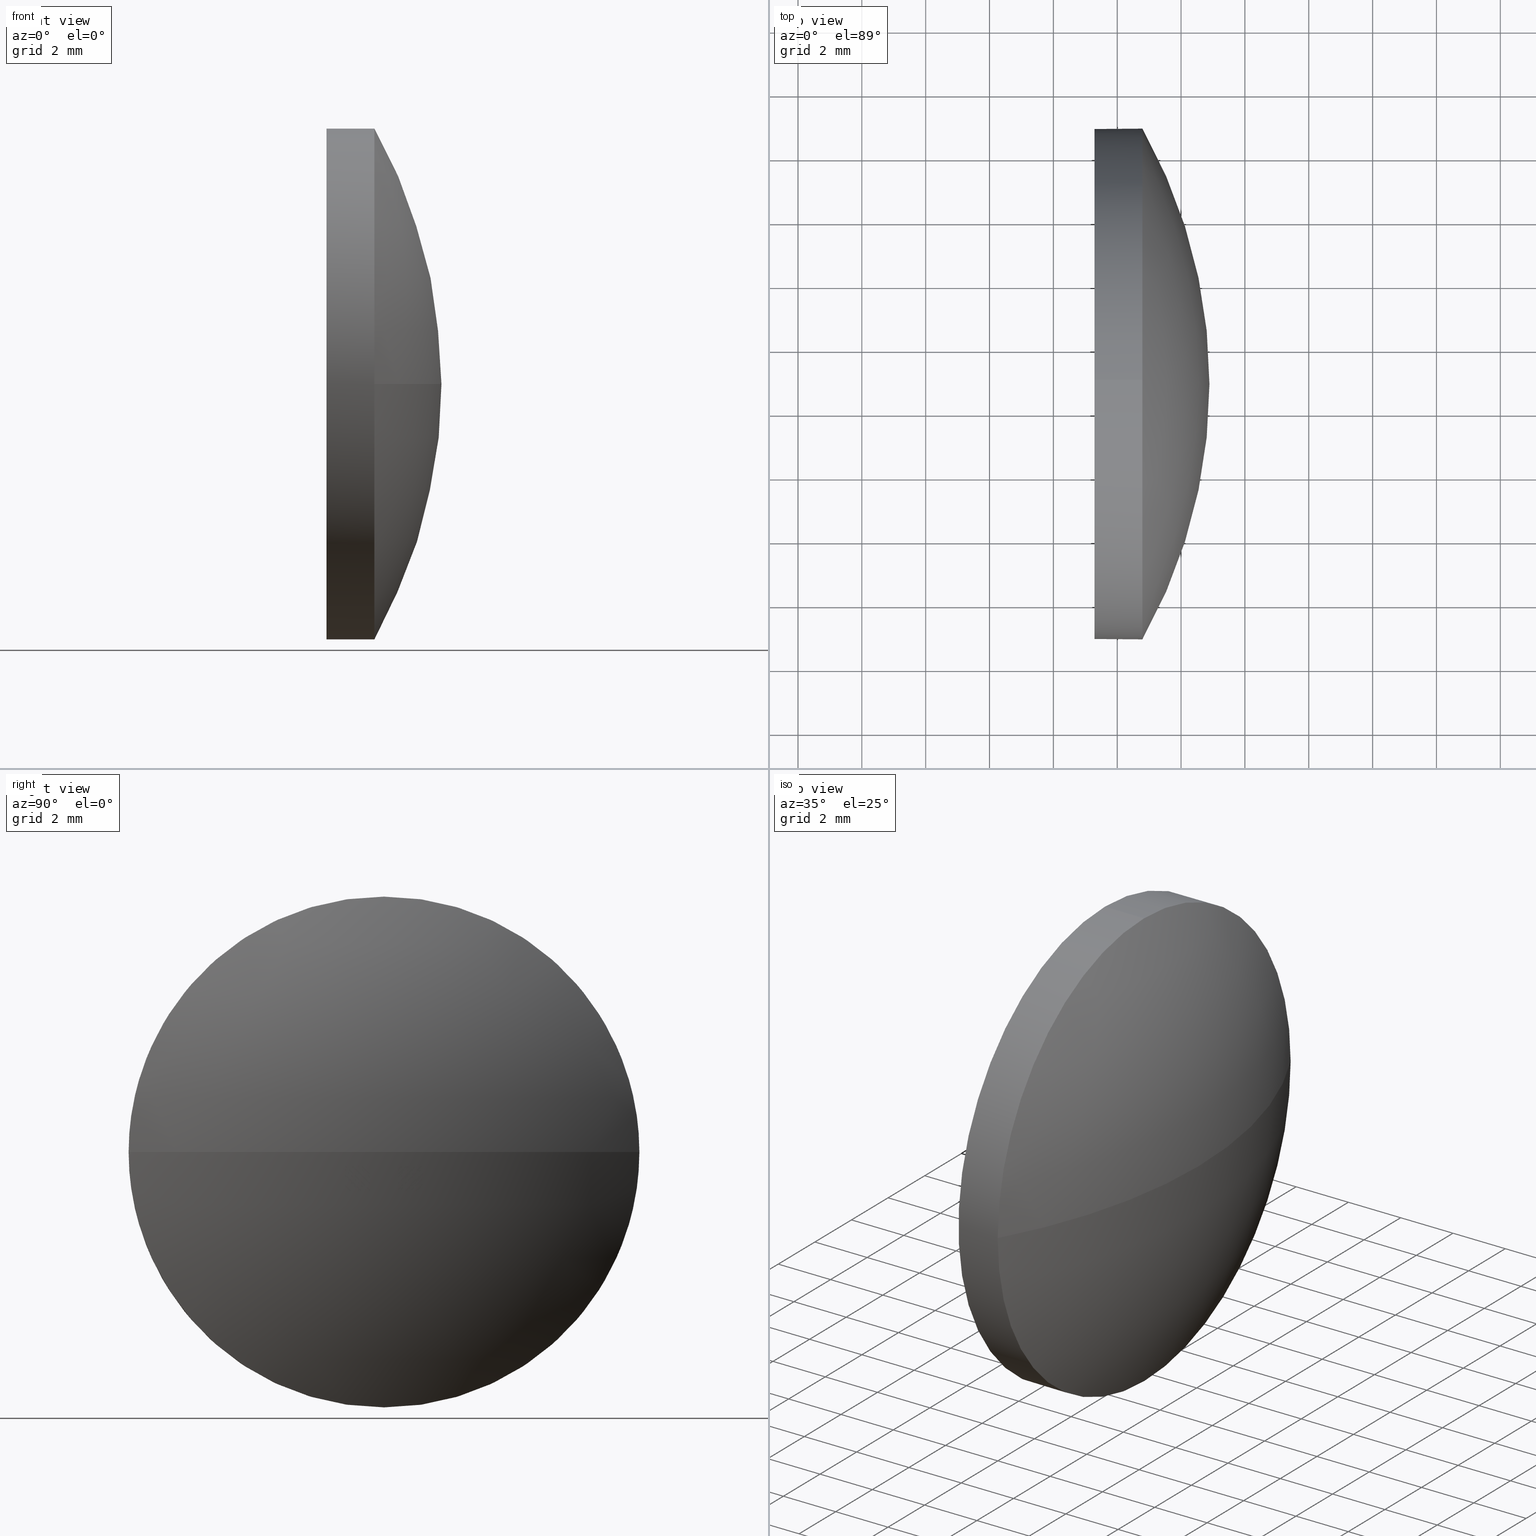
[diagram: canonical four-view strip — front | top / right | iso, engineering-drawing reading convention]
A machine part, canonical four-view strip (front | top / right | iso — engineering-drawing reading convention). The complete STEP part file that produces these views, byte-faithful:
ISO-10303-21;
HEADER;
FILE_DESCRIPTION (( 'STEP AP214' ),
    '1' );
FILE_NAME ('100113.STEP',
    '2019-05-14T02:07:18',
    ( '' ),
    ( '' ),
    'SwSTEP 2.0',
    'SolidWorks 2016',
    '' );
FILE_SCHEMA (( 'AUTOMOTIVE_DESIGN' ));
ENDSEC;

DATA;
#1 = DIRECTION ( 'NONE',  ( 0.0000000000000000000, 0.0000000000000000000, -1.000000000000000000 ) ) ;
#2 = AXIS2_PLACEMENT_3D ( 'NONE', #87, #1, #45 ) ;
#3 = ORIENTED_EDGE ( 'NONE', *, *, #157, .T. ) ;
#4 = SHAPE_DEFINITION_REPRESENTATION ( #36, #78 ) ;
#5 = VERTEX_POINT ( 'NONE', #9 ) ;
#6 = CARTESIAN_POINT ( 'NONE',  ( 0.0000000000000000000, 0.0000000000000000000, 0.0000000000000000000 ) ) ;
#7 = COLOUR_RGB ( '',1.000000000000000000, 1.000000000000000000, 1.000000000000000000 ) ;
#8 = CARTESIAN_POINT ( 'NONE',  ( 396.8896529179952500, 34.86392856957573400, 0.0000000000000000000 ) ) ;
#9 = CARTESIAN_POINT ( 'NONE',  ( 394.7896529179952800, 42.86392856957571200, 9.797174393178796100E-016 ) ) ;
#10 =( GEOMETRIC_REPRESENTATION_CONTEXT ( 3 ) GLOBAL_UNCERTAINTY_ASSIGNED_CONTEXT ( ( #184 ) ) GLOBAL_UNIT_ASSIGNED_CONTEXT ( ( #101, #126, #29 ) ) REPRESENTATION_CONTEXT ( 'NONE', 'WORKASPACE' ) );
#11 = EDGE_LOOP ( 'NONE', ( #25, #138 ) ) ;
#12 = CARTESIAN_POINT ( 'NONE',  ( 393.2896529179952800, 34.86392856957570500, 8.000000000000000000 ) ) ;
#13 = CIRCLE ( 'NONE', #155, 8.000000000000000000 ) ;
#14 = CARTESIAN_POINT ( 'NONE',  ( 391.3668362131495500, 34.86392856957570500, -8.000000000000000000 ) ) ;
#15 = CARTESIAN_POINT ( 'NONE',  ( 393.2896529179952800, 34.86392856957570500, 0.0000000000000000000 ) ) ;
#16 = PRESENTATION_LAYER_ASSIGNMENT (  '', '', ( #108 ) ) ;
#17 = EDGE_LOOP ( 'NONE', ( #104, #47, #32, #83 ) ) ;
#18 = FACE_OUTER_BOUND ( 'NONE', #114, .T. ) ;
#19 = ORIENTED_EDGE ( 'NONE', *, *, #157, .F. ) ;
#20 = EDGE_CURVE ( 'NONE', #61, #46, #21, .T. ) ;
#21 = CIRCLE ( 'NONE', #123, 8.000000000000000000 ) ;
#22 = CYLINDRICAL_SURFACE ( 'NONE', #176, 8.000000000000000000 ) ;
#23 = PLANE ( 'NONE',  #89 ) ;
#24 = MECHANICAL_DESIGN_GEOMETRIC_PRESENTATION_REPRESENTATION (  '', ( #108 ), #38 ) ;
#25 = ORIENTED_EDGE ( 'NONE', *, *, #20, .T. ) ;
#26 = SURFACE_STYLE_USAGE ( .BOTH. , #183 ) ;
#27 = CARTESIAN_POINT ( 'NONE',  ( 391.3668362131495500, 34.86392856957570500, 0.0000000000000000000 ) ) ;
#28 = FACE_OUTER_BOUND ( 'NONE', #53, .T. ) ;
#29 =( NAMED_UNIT ( * ) SI_UNIT ( $, .STERADIAN. ) SOLID_ANGLE_UNIT ( ) );
#30 = CARTESIAN_POINT ( 'NONE',  ( 394.7896529179952800, 34.86392856957570500, 0.0000000000000000000 ) ) ;
#31 = DIRECTION ( 'NONE',  ( 0.0000000000000000000, 0.0000000000000000000, 1.000000000000000000 ) ) ;
#32 = ORIENTED_EDGE ( 'NONE', *, *, #115, .F. ) ;
#33 = CARTESIAN_POINT ( 'NONE',  ( 391.3668362131495500, 34.86392856957570500, 0.0000000000000000000 ) ) ;
#34 = AXIS2_PLACEMENT_3D ( 'NONE', #71, #131, #154 ) ;
#35 = FACE_OUTER_BOUND ( 'NONE', #17, .T. ) ;
#36 = PRODUCT_DEFINITION_SHAPE ( 'NONE', 'NONE',  #120 ) ;
#37 = UNCERTAINTY_MEASURE_WITH_UNIT (LENGTH_MEASURE( 1.000000000000000100E-005 ), #48, 'distance_accuracy_value', 'NONE');
#38 =( GEOMETRIC_REPRESENTATION_CONTEXT ( 3 ) GLOBAL_UNCERTAINTY_ASSIGNED_CONTEXT ( ( #160 ) ) GLOBAL_UNIT_ASSIGNED_CONTEXT ( ( #50, #69, #147 ) ) REPRESENTATION_CONTEXT ( 'NONE', 'WORKASPACE' ) );
#39 = DIRECTION ( 'NONE',  ( 1.000000000000000000, 0.0000000000000000000, 0.0000000000000000000 ) ) ;
#40 =( NAMED_UNIT ( * ) PLANE_ANGLE_UNIT ( ) SI_UNIT ( $, .RADIAN. ) );
#41 = FILL_AREA_STYLE_COLOUR ( '', #49 ) ;
#42 =( GEOMETRIC_REPRESENTATION_CONTEXT ( 3 ) GLOBAL_UNCERTAINTY_ASSIGNED_CONTEXT ( ( #37 ) ) GLOBAL_UNIT_ASSIGNED_CONTEXT ( ( #48, #40, #80 ) ) REPRESENTATION_CONTEXT ( 'NONE', 'WORKASPACE' ) );
#43 = ORIENTED_EDGE ( 'NONE', *, *, #151, .F. ) ;
#44 = EDGE_CURVE ( 'NONE', #5, #119, #13, .T. ) ;
#45 = DIRECTION ( 'NONE',  ( -1.000000000000000000, 0.0000000000000000000, 0.0000000000000000000 ) ) ;
#46 = VERTEX_POINT ( 'NONE', #70 ) ;
#47 = ORIENTED_EDGE ( 'NONE', *, *, #106, .T. ) ;
#48 =( LENGTH_UNIT ( ) NAMED_UNIT ( * ) SI_UNIT ( .MILLI., .METRE. ) );
#49 = COLOUR_RGB ( '',1.000000000000000000, 1.000000000000000000, 1.000000000000000000 ) ;
#50 =( LENGTH_UNIT ( ) NAMED_UNIT ( * ) SI_UNIT ( .MILLI., .METRE. ) );
#51 = ADVANCED_FACE ( 'NONE', ( #86 ), #159, .T. ) ;
#52 = EDGE_CURVE ( 'NONE', #46, #61, #55, .T. ) ;
#53 = EDGE_LOOP ( 'NONE', ( #149, #158, #150, #19, #92 ) ) ;
#54 = DIRECTION ( 'NONE',  ( -1.000000000000000000, -0.0000000000000000000, -0.0000000000000000000 ) ) ;
#55 = CIRCLE ( 'NONE', #175, 8.000000000000000000 ) ;
#56 = VECTOR ( 'NONE', #117, 1000.000000000000000 ) ;
#57 = SPHERICAL_SURFACE ( 'NONE', #76, 16.28809523809521300 ) ;
#58 = DIRECTION ( 'NONE',  ( 0.0000000000000000000, 0.0000000000000000000, 1.000000000000000000 ) ) ;
#59 = DIRECTION ( 'NONE',  ( 0.0000000000000000000, 0.0000000000000000000, 1.000000000000000000 ) ) ;
#60 = DIRECTION ( 'NONE',  ( -1.000000000000000000, -0.0000000000000000000, -0.0000000000000000000 ) ) ;
#61 = VERTEX_POINT ( 'NONE', #12 ) ;
#62 = AXIS2_PLACEMENT_3D ( 'NONE', #102, #145, #186 ) ;
#63 = PRESENTATION_STYLE_ASSIGNMENT (( #26 ) ) ;
#64 = AXIS2_PLACEMENT_3D ( 'NONE', #6, #95, #39 ) ;
#65 = AXIS2_PLACEMENT_3D ( 'NONE', #27, #100, #128 ) ;
#66 = CIRCLE ( 'NONE', #168, 8.000000000000000000 ) ;
#67 = APPLICATION_PROTOCOL_DEFINITION ( 'draft international standard', 'automotive_design', 1998, #124 ) ;
#68 = MANIFOLD_SOLID_BREP ( '��ת1', #156 ) ;
#69 =( NAMED_UNIT ( * ) PLANE_ANGLE_UNIT ( ) SI_UNIT ( $, .RADIAN. ) );
#70 = CARTESIAN_POINT ( 'NONE',  ( 393.2896529179952800, 34.86392856957570500, -8.000000000000000000 ) ) ;
#71 = CARTESIAN_POINT ( 'NONE',  ( 394.7896529179952800, 34.86392856957570500, 0.0000000000000000000 ) ) ;
#72 = CARTESIAN_POINT ( 'NONE',  ( 380.6015576799000500, 34.86392856957573400, 0.0000000000000000000 ) ) ;
#73 = PRODUCT_RELATED_PRODUCT_CATEGORY ( 'part', '', ( #113 ) ) ;
#74 = EDGE_CURVE ( 'NONE', #119, #46, #141, .T. ) ;
#75 = ORIENTED_EDGE ( 'NONE', *, *, #52, .F. ) ;
#76 = AXIS2_PLACEMENT_3D ( 'NONE', #129, #58, #153 ) ;
#77 = ORIENTED_EDGE ( 'NONE', *, *, #106, .F. ) ;
#78 = ADVANCED_BREP_SHAPE_REPRESENTATION ( '100113', ( #68, #64 ), #42 ) ;
#79 = CARTESIAN_POINT ( 'NONE',  ( 393.2896529179952800, 34.86392856957570500, 0.0000000000000000000 ) ) ;
#80 =( NAMED_UNIT ( * ) SI_UNIT ( $, .STERADIAN. ) SOLID_ANGLE_UNIT ( ) );
#81 = PRODUCT_DEFINITION_FORMATION_WITH_SPECIFIED_SOURCE ( '�κ�', '', #113, .NOT_KNOWN. ) ;
#82 = CARTESIAN_POINT ( 'NONE',  ( 394.7896529179952800, 26.86392856957573400, 0.0000000000000000000 ) ) ;
#83 = ORIENTED_EDGE ( 'NONE', *, *, #44, .F. ) ;
#84 = DIRECTION ( 'NONE',  ( -1.000000000000000000, -0.0000000000000000000, -0.0000000000000000000 ) ) ;
#85 = DIRECTION ( 'NONE',  ( 0.0000000000000000000, 0.0000000000000000000, 1.000000000000000000 ) ) ;
#86 = FACE_OUTER_BOUND ( 'NONE', #144, .T. ) ;
#87 = CARTESIAN_POINT ( 'NONE',  ( 380.6015576799000500, 34.86392856957573400, 0.0000000000000000000 ) ) ;
#88 = VERTEX_POINT ( 'NONE', #140 ) ;
#89 = AXIS2_PLACEMENT_3D ( 'NONE', #79, #137, #109 ) ;
#90 = EDGE_CURVE ( 'NONE', #88, #5, #66, .T. ) ;
#91 = ORIENTED_EDGE ( 'NONE', *, *, #151, .T. ) ;
#92 = ORIENTED_EDGE ( 'NONE', *, *, #90, .T. ) ;
#93 = SPHERICAL_SURFACE ( 'NONE', #179, 16.28809523809521300 ) ;
#94 = LINE ( 'NONE', #185, #56 ) ;
#95 = DIRECTION ( 'NONE',  ( 0.0000000000000000000, 0.0000000000000000000, 1.000000000000000000 ) ) ;
#96 = SURFACE_STYLE_FILL_AREA ( #146 ) ;
#97 = PRODUCT_CONTEXT ( 'NONE', #163, 'mechanical' ) ;
#98 = APPLICATION_PROTOCOL_DEFINITION ( 'draft international standard', 'automotive_design', 1998, #163 ) ;
#99 = VERTEX_POINT ( 'NONE', #82 ) ;
#100 = DIRECTION ( 'NONE',  ( -1.000000000000000000, -0.0000000000000000000, -0.0000000000000000000 ) ) ;
#101 =( LENGTH_UNIT ( ) NAMED_UNIT ( * ) SI_UNIT ( .MILLI., .METRE. ) );
#102 = CARTESIAN_POINT ( 'NONE',  ( 380.6015576799000500, 34.86392856957573400, 0.0000000000000000000 ) ) ;
#103 = CARTESIAN_POINT ( 'NONE',  ( 394.7896529179952800, 34.86392856957570500, -8.000000000000000000 ) ) ;
#104 = ORIENTED_EDGE ( 'NONE', *, *, #161, .F. ) ;
#105 = VECTOR ( 'NONE', #54, 1000.000000000000000 ) ;
#106 = EDGE_CURVE ( 'NONE', #107, #99, #170, .T. ) ;
#107 = VERTEX_POINT ( 'NONE', #8 ) ;
#108 = STYLED_ITEM ( 'NONE', ( #169 ), #78 ) ;
#109 = DIRECTION ( 'NONE',  ( 0.0000000000000000000, 0.0000000000000000000, -1.000000000000000000 ) ) ;
#110 = ADVANCED_FACE ( 'NONE', ( #28 ), #22, .T. ) ;
#111 = FILL_AREA_STYLE ('',( #41 ) ) ;
#112 = STYLED_ITEM ( 'NONE', ( #63 ), #68 ) ;
#113 = PRODUCT ( '100113', '100113', '', ( #97 ) ) ;
#114 = EDGE_LOOP ( 'NONE', ( #77, #165, #127, #43 ) ) ;
#115 = EDGE_CURVE ( 'NONE', #119, #99, #162, .T. ) ;
#116 = CARTESIAN_POINT ( 'NONE',  ( 394.7896529179952800, 34.86392856957570500, 0.0000000000000000000 ) ) ;
#117 = DIRECTION ( 'NONE',  ( -1.000000000000000000, -0.0000000000000000000, -0.0000000000000000000 ) ) ;
#118 = DIRECTION ( 'NONE',  ( -1.000000000000000000, -0.0000000000000000000, -0.0000000000000000000 ) ) ;
#119 = VERTEX_POINT ( 'NONE', #103 ) ;
#120 = PRODUCT_DEFINITION ( 'δ֪', '', #81, #135 ) ;
#121 = ORIENTED_EDGE ( 'NONE', *, *, #74, .F. ) ;
#122 = SURFACE_STYLE_FILL_AREA ( #111 ) ;
#123 = AXIS2_PLACEMENT_3D ( 'NONE', #125, #84, #182 ) ;
#124 = APPLICATION_CONTEXT ( 'automotive_design' ) ;
#125 = CARTESIAN_POINT ( 'NONE',  ( 393.2896529179952800, 34.86392856957570500, 0.0000000000000000000 ) ) ;
#126 =( NAMED_UNIT ( * ) PLANE_ANGLE_UNIT ( ) SI_UNIT ( $, .RADIAN. ) );
#127 = ORIENTED_EDGE ( 'NONE', *, *, #90, .F. ) ;
#128 = DIRECTION ( 'NONE',  ( 0.0000000000000000000, 0.0000000000000000000, 1.000000000000000000 ) ) ;
#129 = CARTESIAN_POINT ( 'NONE',  ( 380.6015576799000500, 34.86392856957573400, 0.0000000000000000000 ) ) ;
#130 = DIRECTION ( 'NONE',  ( 0.0000000000000000000, -1.000000000000000000, 0.0000000000000000000 ) ) ;
#131 = DIRECTION ( 'NONE',  ( -1.000000000000000000, -0.0000000000000000000, -0.0000000000000000000 ) ) ;
#132 = ORIENTED_EDGE ( 'NONE', *, *, #115, .T. ) ;
#133 = CIRCLE ( 'NONE', #34, 8.000000000000000000 ) ;
#134 = PRESENTATION_LAYER_ASSIGNMENT (  '', '', ( #112 ) ) ;
#135 = PRODUCT_DEFINITION_CONTEXT ( 'detailed design', #124, 'design' ) ;
#136 = CIRCLE ( 'NONE', #62, 16.28809523809521300 ) ;
#137 = DIRECTION ( 'NONE',  ( 1.000000000000000000, 0.0000000000000000000, 0.0000000000000000000 ) ) ;
#138 = ORIENTED_EDGE ( 'NONE', *, *, #52, .T. ) ;
#139 = DIRECTION ( 'NONE',  ( 0.0000000000000000000, 0.0000000000000000000, 1.000000000000000000 ) ) ;
#140 = CARTESIAN_POINT ( 'NONE',  ( 394.7896529179952800, 34.86392856957570500, 8.000000000000000000 ) ) ;
#141 = LINE ( 'NONE', #14, #105 ) ;
#142 = MECHANICAL_DESIGN_GEOMETRIC_PRESENTATION_REPRESENTATION (  '', ( #112 ), #10 ) ;
#143 = DIRECTION ( 'NONE',  ( 0.0000000000000000000, 0.0000000000000000000, 1.000000000000000000 ) ) ;
#144 = EDGE_LOOP ( 'NONE', ( #121, #132, #91, #3, #75 ) ) ;
#145 = DIRECTION ( 'NONE',  ( 0.0000000000000000000, -1.224646799147353200E-016, 1.000000000000000000 ) ) ;
#146 = FILL_AREA_STYLE ('',( #148 ) ) ;
#147 =( NAMED_UNIT ( * ) SI_UNIT ( $, .STERADIAN. ) SOLID_ANGLE_UNIT ( ) );
#148 = FILL_AREA_STYLE_COLOUR ( '', #7 ) ;
#149 = ORIENTED_EDGE ( 'NONE', *, *, #44, .T. ) ;
#150 = ORIENTED_EDGE ( 'NONE', *, *, #20, .F. ) ;
#151 = EDGE_CURVE ( 'NONE', #99, #88, #133, .T. ) ;
#152 = FACE_OUTER_BOUND ( 'NONE', #11, .T. ) ;
#153 = DIRECTION ( 'NONE',  ( 0.0000000000000000000, -1.000000000000000000, 0.0000000000000000000 ) ) ;
#154 = DIRECTION ( 'NONE',  ( 0.0000000000000000000, 0.0000000000000000000, 1.000000000000000000 ) ) ;
#155 = AXIS2_PLACEMENT_3D ( 'NONE', #181, #171, #85 ) ;
#156 = CLOSED_SHELL ( 'NONE', ( #110, #166, #164, #51, #180 ) ) ;
#157 = EDGE_CURVE ( 'NONE', #88, #61, #94, .T. ) ;
#158 = ORIENTED_EDGE ( 'NONE', *, *, #74, .T. ) ;
#159 = CYLINDRICAL_SURFACE ( 'NONE', #65, 8.000000000000000000 ) ;
#160 = UNCERTAINTY_MEASURE_WITH_UNIT (LENGTH_MEASURE( 1.000000000000000100E-005 ), #50, 'distance_accuracy_value', 'NONE');
#161 = EDGE_CURVE ( 'NONE', #107, #5, #136, .T. ) ;
#162 = CIRCLE ( 'NONE', #173, 8.000000000000000000 ) ;
#163 = APPLICATION_CONTEXT ( 'automotive_design' ) ;
#164 = ADVANCED_FACE ( 'NONE', ( #35 ), #93, .T. ) ;
#165 = ORIENTED_EDGE ( 'NONE', *, *, #161, .T. ) ;
#166 = ADVANCED_FACE ( 'NONE', ( #18 ), #57, .T. ) ;
#167 = DIRECTION ( 'NONE',  ( -1.000000000000000000, -0.0000000000000000000, -0.0000000000000000000 ) ) ;
#168 = AXIS2_PLACEMENT_3D ( 'NONE', #116, #172, #59 ) ;
#169 = PRESENTATION_STYLE_ASSIGNMENT (( #177 ) ) ;
#170 = CIRCLE ( 'NONE', #2, 16.28809523809521300 ) ;
#171 = DIRECTION ( 'NONE',  ( -1.000000000000000000, -0.0000000000000000000, -0.0000000000000000000 ) ) ;
#172 = DIRECTION ( 'NONE',  ( -1.000000000000000000, -0.0000000000000000000, -0.0000000000000000000 ) ) ;
#173 = AXIS2_PLACEMENT_3D ( 'NONE', #30, #118, #174 ) ;
#174 = DIRECTION ( 'NONE',  ( 0.0000000000000000000, 0.0000000000000000000, 1.000000000000000000 ) ) ;
#175 = AXIS2_PLACEMENT_3D ( 'NONE', #15, #167, #139 ) ;
#176 = AXIS2_PLACEMENT_3D ( 'NONE', #33, #60, #143 ) ;
#177 = SURFACE_STYLE_USAGE ( .BOTH. , #178 ) ;
#178 = SURFACE_SIDE_STYLE ('',( #96 ) ) ;
#179 = AXIS2_PLACEMENT_3D ( 'NONE', #72, #31, #130 ) ;
#180 = ADVANCED_FACE ( 'NONE', ( #152 ), #23, .F. ) ;
#181 = CARTESIAN_POINT ( 'NONE',  ( 394.7896529179952800, 34.86392856957570500, 0.0000000000000000000 ) ) ;
#182 = DIRECTION ( 'NONE',  ( 0.0000000000000000000, 0.0000000000000000000, 1.000000000000000000 ) ) ;
#183 = SURFACE_SIDE_STYLE ('',( #122 ) ) ;
#184 = UNCERTAINTY_MEASURE_WITH_UNIT (LENGTH_MEASURE( 1.000000000000000100E-005 ), #101, 'distance_accuracy_value', 'NONE');
#185 = CARTESIAN_POINT ( 'NONE',  ( 391.3668362131495500, 34.86392856957570500, 8.000000000000000000 ) ) ;
#186 = DIRECTION ( 'NONE',  ( 0.0000000000000000000, -1.000000000000000000, -1.224646799147353000E-016 ) ) ;
ENDSEC;
END-ISO-10303-21;
